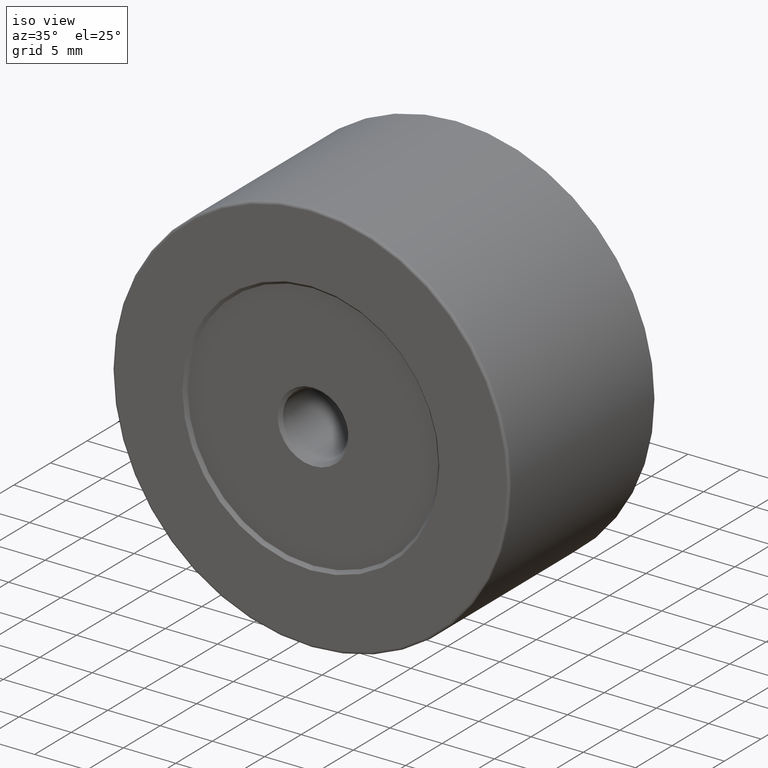
[diagram: clean part render]
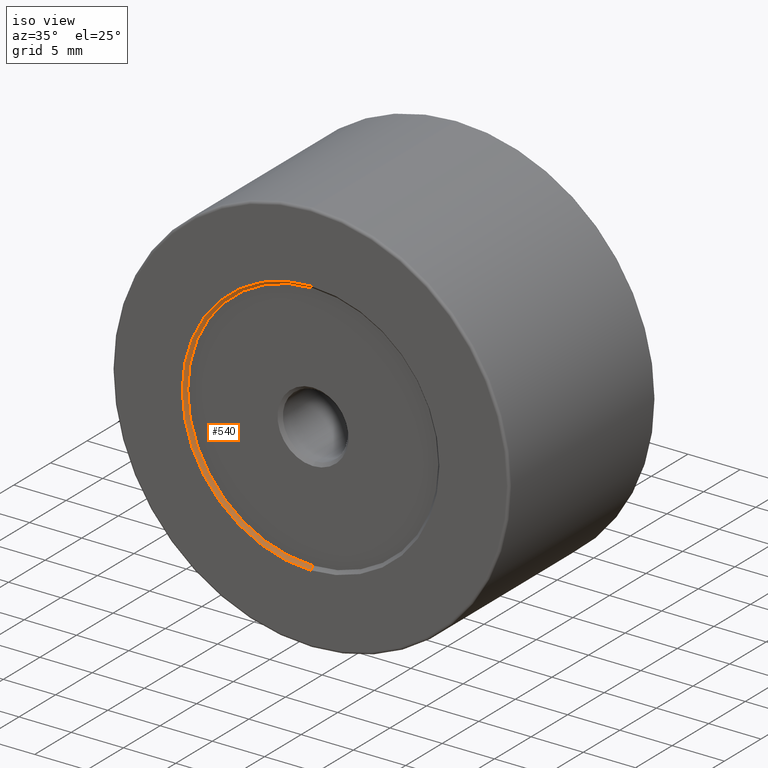
[diagram: same view with one face highlighted and labeled with its STEP entity id]
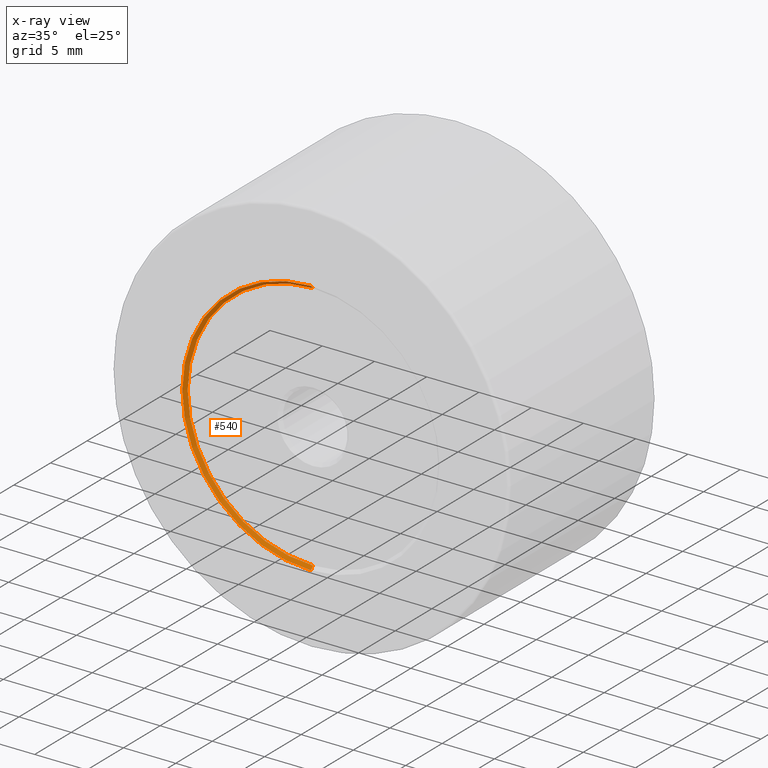
[diagram: x-ray of the same camera — body ghosted, the highlighted face saturated]
A machine part, iso view. The second image highlights one B-rep face of the part: STEP entity #540.
The next image is the same camera in x-ray: the body ghosted, the highlighted face saturated — about 0% of this face is hidden behind the body in this view.
In plain terms, the highlighted conical surface has half-angle 45 deg.
Its self-contained STEP definition (entity closure, byte-faithful):
#6 = CONICAL_SURFACE ( 'NONE', #609, 12.30000000000001315, 0.7853981633974396193 ) ;
#24 = DIRECTION ( 'NONE',  ( 0.000000000000000000, 0.000000000000000000, 1.000000000000000000 ) ) ;
#27 = CARTESIAN_POINT ( 'NONE',  ( -7.546808913101048510, -12.89359512730272783, 25.69999999999998508 ) ) ;
#41 = DIRECTION ( 'NONE',  ( 0.000000000000000000, 1.000000000000000000, 0.000000000000000000 ) ) ;
#44 = CARTESIAN_POINT ( 'NONE',  ( -7.546808913101048510, -12.59359512730272890, 25.99999999999999645 ) ) ;
#48 = AXIS2_PLACEMENT_3D ( 'NONE', #105, #108, #56 ) ;
#51 = AXIS2_PLACEMENT_3D ( 'NONE', #364, #41, #24 ) ;
#56 = DIRECTION ( 'NONE',  ( 0.000000000000000000, 0.000000000000000000, 1.000000000000000000 ) ) ;
#89 = ORIENTED_EDGE ( 'NONE', *, *, #331, .T. ) ;
#95 = ORIENTED_EDGE ( 'NONE', *, *, #582, .T. ) ;
#105 = CARTESIAN_POINT ( 'NONE',  ( -7.546808913101048510, -12.59359512730272890, 38.00000000000000000 ) ) ;
#108 = DIRECTION ( 'NONE',  ( -0.000000000000000000, 1.000000000000000000, -0.000000000000000000 ) ) ;
#114 = CARTESIAN_POINT ( 'NONE',  ( -7.546808913101046734, -12.59359512730272890, 50.00000000000000000 ) ) ;
#126 = ORIENTED_EDGE ( 'NONE', *, *, #294, .F. ) ;
#152 = CIRCLE ( 'NONE', #48, 12.00000000000000355 ) ;
#171 = DIRECTION ( 'NONE',  ( 8.659560562354860135E-17, -0.7071067811865536790, 0.7071067811865414665 ) ) ;
#191 = CARTESIAN_POINT ( 'NONE',  ( -7.546808913101046734, -12.89359512730272783, 50.30000000000001137 ) ) ;
#203 = LINE ( 'NONE', #578, #424 ) ;
#218 = CARTESIAN_POINT ( 'NONE',  ( -7.546808913101046734, -12.89359512730272783, 50.30000000000001137 ) ) ;
#223 = ORIENTED_EDGE ( 'NONE', *, *, #572, .F. ) ;
#249 = FACE_OUTER_BOUND ( 'NONE', #360, .T. ) ;
#274 = VECTOR ( 'NONE', #171, 1000.000000000000000 ) ;
#294 = EDGE_CURVE ( 'NONE', #423, #419, #505, .T. ) ;
#299 = DIRECTION ( 'NONE',  ( 0.000000000000000000, -0.7071067811865536790, -0.7071067811865414665 ) ) ;
#321 = VERTEX_POINT ( 'NONE', #44 ) ;
#326 = LINE ( 'NONE', #218, #274 ) ;
#331 = EDGE_CURVE ( 'NONE', #568, #419, #326, .T. ) ;
#360 = EDGE_LOOP ( 'NONE', ( #95, #89, #126, #223 ) ) ;
#364 = CARTESIAN_POINT ( 'NONE',  ( -7.546808913101048510, -12.89359512730272783, 38.00000000000000000 ) ) ;
#419 = VERTEX_POINT ( 'NONE', #191 ) ;
#423 = VERTEX_POINT ( 'NONE', #27 ) ;
#424 = VECTOR ( 'NONE', #299, 1000.000000000000000 ) ;
#480 = CARTESIAN_POINT ( 'NONE',  ( -7.546808913101048510, -12.89359512730272783, 38.00000000000000000 ) ) ;
#505 = CIRCLE ( 'NONE', #51, 12.30000000000001315 ) ;
#529 = DIRECTION ( 'NONE',  ( -0.000000000000000000, -1.000000000000000000, -0.000000000000000000 ) ) ;
#536 = DIRECTION ( 'NONE',  ( 0.000000000000000000, 0.000000000000000000, -1.000000000000000000 ) ) ;
#540 = ADVANCED_FACE ( 'NONE', ( #249 ), #6, .F. ) ;
#568 = VERTEX_POINT ( 'NONE', #114 ) ;
#572 = EDGE_CURVE ( 'NONE', #321, #423, #203, .T. ) ;
#578 = CARTESIAN_POINT ( 'NONE',  ( -7.546808913101048510, -12.89359512730272783, 25.69999999999998508 ) ) ;
#582 = EDGE_CURVE ( 'NONE', #321, #568, #152, .T. ) ;
#609 = AXIS2_PLACEMENT_3D ( 'NONE', #480, #529, #536 ) ;